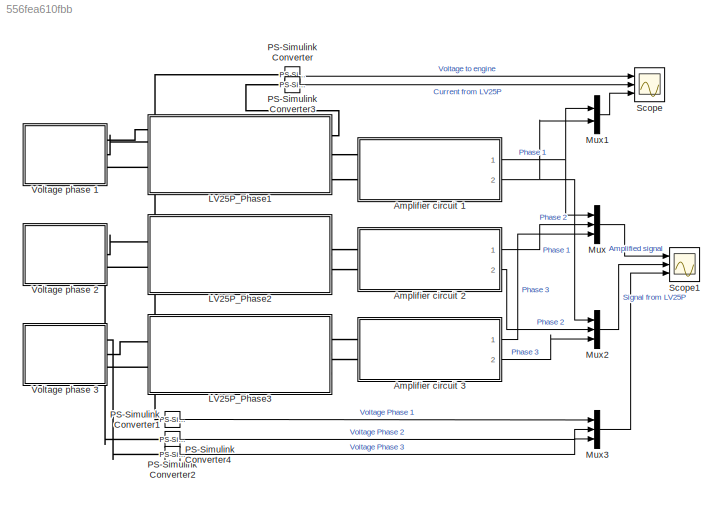
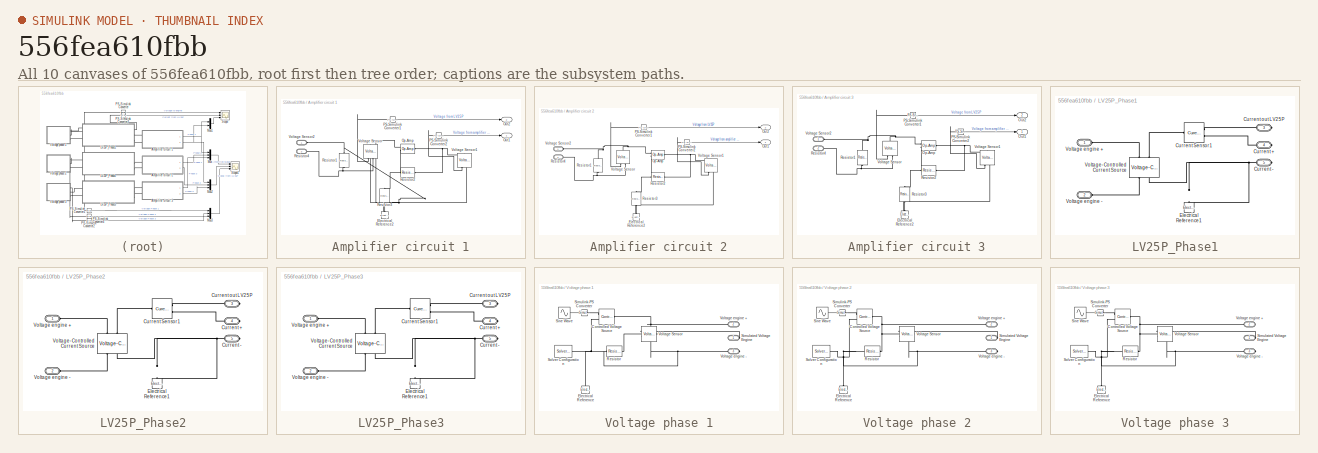
[diagram: thumbnail index - all 10 canvases of the model, root first then tree order]
MODEL slx_556fea610fbb
KIND model
CONFIG AbsTol = auto
CONFIG EnableMultiTasking = off
CONFIG FixedStep = auto
CONFIG MaxStep = auto
CONFIG MinStep = auto
CONFIG RelTol = 1e-3
CONFIG SampleTimeConstraint = Unconstrained
CONFIG SolverName = VariableStepAuto
CONFIG StartTime = 0.0
CONFIG StopTime = 1/15
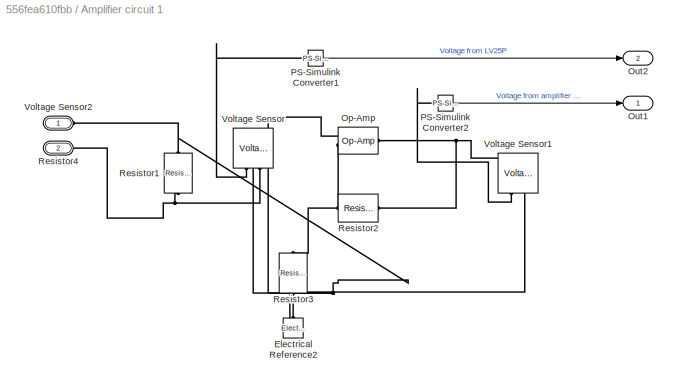
BLOCK [SubSystem] Amplifier circuit 1
  Ports = [0, 2, 0, 0, 0, 2]
  RequestExecContextInheritance = off
BLOCK [Reference] Amplifier circuit 1/Electrical Reference2  REF=fl_lib/Electrical/Electrical Elements/Electrical Reference
  NameLocation = right
  Ports = [0, 0, 0, 0, 0, 1]
  SourceBlock = fl_lib/Electrical/Electrical Elements/Electrical Reference
  SourceProductBaseCode = SS
  SourceType = Electrical Reference
BLOCK [Reference] Amplifier circuit 1/Op-Amp  REF=fl_lib/Electrical/Electrical Elements/Op-Amp
  Ports = [0, 0, 0, 0, 0, 2, 1]
  SourceBlock = fl_lib/Electrical/Electrical Elements/Op-Amp
  SourceProductBaseCode = SS
  SourceType = Op-Amp
BLOCK [Outport] Amplifier circuit 1/Out1
BLOCK [Outport] Amplifier circuit 1/Out2
  Port = 2
BLOCK [Reference] Amplifier circuit 1/PS-Simulink Converter1  REF=nesl_utility/PS-Simulink
Converter
  Ports = [0, 1, 0, 0, 0, 1]
  SourceBlock = nesl_utility/PS-Simulink\nConverter
  SourceProductBaseCode = SS
  SourceType = PS-Simulink\nConverter
BLOCK [Reference] Amplifier circuit 1/PS-Simulink Converter2  REF=nesl_utility/PS-Simulink
Converter
  Ports = [0, 1, 0, 0, 0, 1]
  SourceBlock = nesl_utility/PS-Simulink\nConverter
  SourceProductBaseCode = SS
  SourceType = PS-Simulink\nConverter
BLOCK [Reference] Amplifier circuit 1/Resistor1  REF=fl_lib/Electrical/Electrical Elements/Resistor
  NameLocation = left
  Ports = [0, 0, 0, 0, 0, 1, 1]
  SourceBlock = fl_lib/Electrical/Electrical Elements/Resistor
  SourceProductBaseCode = SS
  SourceType = Resistor
BLOCK [Reference] Amplifier circuit 1/Resistor2  REF=fl_lib/Electrical/Electrical Elements/Resistor
  Ports = [0, 0, 0, 0, 0, 1, 1]
  SourceBlock = fl_lib/Electrical/Electrical Elements/Resistor
  SourceProductBaseCode = SS
  SourceType = Resistor
BLOCK [Reference] Amplifier circuit 1/Resistor3  REF=fl_lib/Electrical/Electrical Elements/Resistor
  NameLocation = left
  Ports = [0, 0, 0, 0, 0, 1, 1]
  SourceBlock = fl_lib/Electrical/Electrical Elements/Resistor
  SourceProductBaseCode = SS
  SourceType = Resistor
BLOCK [PMIOPort] Amplifier circuit 1/Resistor4
  Port = 2
  Side = Left
BLOCK [Reference] Amplifier circuit 1/Voltage Sensor  REF=fl_lib/Electrical/Electrical Sensors/Voltage Sensor
  NameLocation = right
  Ports = [0, 0, 0, 0, 0, 1, 2]
  SourceBlock = fl_lib/Electrical/Electrical Sensors/Voltage Sensor
  SourceProductBaseCode = SS
  SourceType = Voltage Sensor
BLOCK [Reference] Amplifier circuit 1/Voltage Sensor1  REF=fl_lib/Electrical/Electrical Sensors/Voltage Sensor
  NameLocation = right
  Ports = [0, 0, 0, 0, 0, 1, 2]
  SourceBlock = fl_lib/Electrical/Electrical Sensors/Voltage Sensor
  SourceProductBaseCode = SS
  SourceType = Voltage Sensor
BLOCK [PMIOPort] Amplifier circuit 1/Voltage Sensor2
  Side = Left
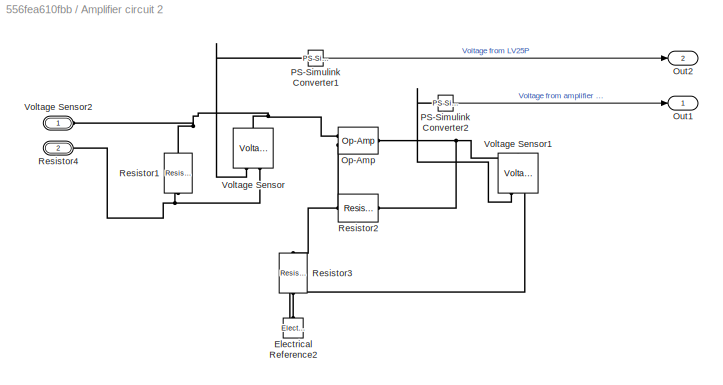
BLOCK [SubSystem] Amplifier circuit 2
  Ports = [0, 2, 0, 0, 0, 2]
  RequestExecContextInheritance = off
BLOCK [Reference] Amplifier circuit 2/Electrical Reference2  REF=fl_lib/Electrical/Electrical Elements/Electrical Reference
  NameLocation = right
  Ports = [0, 0, 0, 0, 0, 1]
  SourceBlock = fl_lib/Electrical/Electrical Elements/Electrical Reference
  SourceProductBaseCode = SS
  SourceType = Electrical Reference
BLOCK [Reference] Amplifier circuit 2/Op-Amp  REF=fl_lib/Electrical/Electrical Elements/Op-Amp
  Ports = [0, 0, 0, 0, 0, 2, 1]
  SourceBlock = fl_lib/Electrical/Electrical Elements/Op-Amp
  SourceProductBaseCode = SS
  SourceType = Op-Amp
BLOCK [Outport] Amplifier circuit 2/Out1
BLOCK [Outport] Amplifier circuit 2/Out2
  Port = 2
BLOCK [Reference] Amplifier circuit 2/PS-Simulink Converter1  REF=nesl_utility/PS-Simulink
Converter
  Ports = [0, 1, 0, 0, 0, 1]
  SourceBlock = nesl_utility/PS-Simulink\nConverter
  SourceProductBaseCode = SS
  SourceType = PS-Simulink\nConverter
BLOCK [Reference] Amplifier circuit 2/PS-Simulink Converter2  REF=nesl_utility/PS-Simulink
Converter
  Ports = [0, 1, 0, 0, 0, 1]
  SourceBlock = nesl_utility/PS-Simulink\nConverter
  SourceProductBaseCode = SS
  SourceType = PS-Simulink\nConverter
BLOCK [Reference] Amplifier circuit 2/Resistor1  REF=fl_lib/Electrical/Electrical Elements/Resistor
  NameLocation = left
  Ports = [0, 0, 0, 0, 0, 1, 1]
  SourceBlock = fl_lib/Electrical/Electrical Elements/Resistor
  SourceProductBaseCode = SS
  SourceType = Resistor
BLOCK [Reference] Amplifier circuit 2/Resistor2  REF=fl_lib/Electrical/Electrical Elements/Resistor
  Ports = [0, 0, 0, 0, 0, 1, 1]
  SourceBlock = fl_lib/Electrical/Electrical Elements/Resistor
  SourceProductBaseCode = SS
  SourceType = Resistor
BLOCK [Reference] Amplifier circuit 2/Resistor3  REF=fl_lib/Electrical/Electrical Elements/Resistor
  NameLocation = left
  Ports = [0, 0, 0, 0, 0, 1, 1]
  SourceBlock = fl_lib/Electrical/Electrical Elements/Resistor
  SourceProductBaseCode = SS
  SourceType = Resistor
BLOCK [PMIOPort] Amplifier circuit 2/Resistor4
  Port = 2
  Side = Left
BLOCK [Reference] Amplifier circuit 2/Voltage Sensor  REF=fl_lib/Electrical/Electrical Sensors/Voltage Sensor
  NameLocation = right
  Ports = [0, 0, 0, 0, 0, 1, 2]
  SourceBlock = fl_lib/Electrical/Electrical Sensors/Voltage Sensor
  SourceProductBaseCode = SS
  SourceType = Voltage Sensor
BLOCK [Reference] Amplifier circuit 2/Voltage Sensor1  REF=fl_lib/Electrical/Electrical Sensors/Voltage Sensor
  NameLocation = right
  Ports = [0, 0, 0, 0, 0, 1, 2]
  SourceBlock = fl_lib/Electrical/Electrical Sensors/Voltage Sensor
  SourceProductBaseCode = SS
  SourceType = Voltage Sensor
BLOCK [PMIOPort] Amplifier circuit 2/Voltage Sensor2
  Side = Left
BLOCK [SubSystem] Amplifier circuit 3
  Ports = [0, 2, 0, 0, 0, 2]
  RequestExecContextInheritance = off
BLOCK [Reference] Amplifier circuit 3/Electrical Reference2  REF=fl_lib/Electrical/Electrical Elements/Electrical Reference
  NameLocation = right
  Ports = [0, 0, 0, 0, 0, 1]
  SourceBlock = fl_lib/Electrical/Electrical Elements/Electrical Reference
  SourceProductBaseCode = SS
  SourceType = Electrical Reference
BLOCK [Reference] Amplifier circuit 3/Op-Amp  REF=fl_lib/Electrical/Electrical Elements/Op-Amp
  Ports = [0, 0, 0, 0, 0, 2, 1]
  SourceBlock = fl_lib/Electrical/Electrical Elements/Op-Amp
  SourceProductBaseCode = SS
  SourceType = Op-Amp
BLOCK [Outport] Amplifier circuit 3/Out1
BLOCK [Outport] Amplifier circuit 3/Out2
  Port = 2
BLOCK [Reference] Amplifier circuit 3/PS-Simulink Converter1  REF=nesl_utility/PS-Simulink
Converter
  Ports = [0, 1, 0, 0, 0, 1]
  SourceBlock = nesl_utility/PS-Simulink\nConverter
  SourceProductBaseCode = SS
  SourceType = PS-Simulink\nConverter
BLOCK [Reference] Amplifier circuit 3/PS-Simulink Converter2  REF=nesl_utility/PS-Simulink
Converter
  Ports = [0, 1, 0, 0, 0, 1]
  SourceBlock = nesl_utility/PS-Simulink\nConverter
  SourceProductBaseCode = SS
  SourceType = PS-Simulink\nConverter
BLOCK [Reference] Amplifier circuit 3/Resistor1  REF=fl_lib/Electrical/Electrical Elements/Resistor
  NameLocation = left
  Ports = [0, 0, 0, 0, 0, 1, 1]
  SourceBlock = fl_lib/Electrical/Electrical Elements/Resistor
  SourceProductBaseCode = SS
  SourceType = Resistor
BLOCK [Reference] Amplifier circuit 3/Resistor2  REF=fl_lib/Electrical/Electrical Elements/Resistor
  Ports = [0, 0, 0, 0, 0, 1, 1]
  SourceBlock = fl_lib/Electrical/Electrical Elements/Resistor
  SourceProductBaseCode = SS
  SourceType = Resistor
BLOCK [Reference] Amplifier circuit 3/Resistor3  REF=fl_lib/Electrical/Electrical Elements/Resistor
  NameLocation = left
  Ports = [0, 0, 0, 0, 0, 1, 1]
  SourceBlock = fl_lib/Electrical/Electrical Elements/Resistor
  SourceProductBaseCode = SS
  SourceType = Resistor
BLOCK [PMIOPort] Amplifier circuit 3/Resistor4
  Port = 2
  Side = Left
BLOCK [Reference] Amplifier circuit 3/Voltage Sensor  REF=fl_lib/Electrical/Electrical Sensors/Voltage Sensor
  NameLocation = right
  Ports = [0, 0, 0, 0, 0, 1, 2]
  SourceBlock = fl_lib/Electrical/Electrical Sensors/Voltage Sensor
  SourceProductBaseCode = SS
  SourceType = Voltage Sensor
BLOCK [Reference] Amplifier circuit 3/Voltage Sensor1  REF=fl_lib/Electrical/Electrical Sensors/Voltage Sensor
  NameLocation = right
  Ports = [0, 0, 0, 0, 0, 1, 2]
  SourceBlock = fl_lib/Electrical/Electrical Sensors/Voltage Sensor
  SourceProductBaseCode = SS
  SourceType = Voltage Sensor
BLOCK [PMIOPort] Amplifier circuit 3/Voltage Sensor2
  Side = Left
BLOCK [SubSystem] LV25P_Phase1
  Ports = [0, 0, 0, 0, 0, 2, 3]
  RequestExecContextInheritance = off
BLOCK [PMIOPort] LV25P_Phase1/Current +
  Port = 4
  Side = Right
BLOCK [PMIOPort] LV25P_Phase1/Current -
  Port = 5
  Side = Right
BLOCK [Reference] LV25P_Phase1/Current Sensor1  REF=fl_lib/Electrical/Electrical Sensors/Current Sensor
  Ports = [0, 0, 0, 0, 0, 1, 2]
  SourceBlock = fl_lib/Electrical/Electrical Sensors/Current Sensor
  SourceProductBaseCode = SS
  SourceType = Current Sensor
BLOCK [PMIOPort] LV25P_Phase1/Current out LV25P
  Port = 3
  Side = Right
BLOCK [Reference] LV25P_Phase1/Electrical Reference1  REF=fl_lib/Electrical/Electrical Elements/Electrical Reference
  NameLocation = right
  Ports = [0, 0, 0, 0, 0, 1]
  SourceBlock = fl_lib/Electrical/Electrical Elements/Electrical Reference
  SourceProductBaseCode = SS
  SourceType = Electrical Reference
BLOCK [PMIOPort] LV25P_Phase1/Voltage engine +
  Side = Left
BLOCK [PMIOPort] LV25P_Phase1/Voltage engine -
  Port = 2
  Side = Left
BLOCK [Reference] LV25P_Phase1/Voltage-Controlled Current Source  REF=fl_lib/Electrical/Electrical Sources/Voltage-Controlled
Current Source
  NameLocation = right
  Ports = [0, 0, 0, 0, 0, 2, 2]
  SourceBlock = fl_lib/Electrical/Electrical Sources/Voltage-Controlled\nCurrent Source
  SourceProductBaseCode = SS
  SourceType = Voltage-Controlled\nCurrent Source
BLOCK [SubSystem] LV25P_Phase2
  Ports = [0, 0, 0, 0, 0, 2, 3]
  RequestExecContextInheritance = off
BLOCK [PMIOPort] LV25P_Phase2/Current +
  Port = 4
  Side = Right
BLOCK [PMIOPort] LV25P_Phase2/Current -
  Port = 5
  Side = Right
BLOCK [Reference] LV25P_Phase2/Current Sensor1  REF=fl_lib/Electrical/Electrical Sensors/Current Sensor
  Ports = [0, 0, 0, 0, 0, 1, 2]
  SourceBlock = fl_lib/Electrical/Electrical Sensors/Current Sensor
  SourceProductBaseCode = SS
  SourceType = Current Sensor
BLOCK [PMIOPort] LV25P_Phase2/Current out LV25P
  Port = 3
  Side = Right
BLOCK [Reference] LV25P_Phase2/Electrical Reference1  REF=fl_lib/Electrical/Electrical Elements/Electrical Reference
  NameLocation = right
  Ports = [0, 0, 0, 0, 0, 1]
  SourceBlock = fl_lib/Electrical/Electrical Elements/Electrical Reference
  SourceProductBaseCode = SS
  SourceType = Electrical Reference
BLOCK [PMIOPort] LV25P_Phase2/Voltage engine +
  Side = Left
BLOCK [PMIOPort] LV25P_Phase2/Voltage engine -
  Port = 2
  Side = Left
BLOCK [Reference] LV25P_Phase2/Voltage-Controlled Current Source  REF=fl_lib/Electrical/Electrical Sources/Voltage-Controlled
Current Source
  NameLocation = right
  Ports = [0, 0, 0, 0, 0, 2, 2]
  SourceBlock = fl_lib/Electrical/Electrical Sources/Voltage-Controlled\nCurrent Source
  SourceProductBaseCode = SS
  SourceType = Voltage-Controlled\nCurrent Source
BLOCK [SubSystem] LV25P_Phase3
  Ports = [0, 0, 0, 0, 0, 2, 3]
  RequestExecContextInheritance = off
BLOCK [PMIOPort] LV25P_Phase3/Current +
  Port = 4
  Side = Right
BLOCK [PMIOPort] LV25P_Phase3/Current -
  Port = 5
  Side = Right
BLOCK [Reference] LV25P_Phase3/Current Sensor1  REF=fl_lib/Electrical/Electrical Sensors/Current Sensor
  Ports = [0, 0, 0, 0, 0, 1, 2]
  SourceBlock = fl_lib/Electrical/Electrical Sensors/Current Sensor
  SourceProductBaseCode = SS
  SourceType = Current Sensor
BLOCK [PMIOPort] LV25P_Phase3/Current out LV25P
  Port = 3
  Side = Right
BLOCK [Reference] LV25P_Phase3/Electrical Reference1  REF=fl_lib/Electrical/Electrical Elements/Electrical Reference
  NameLocation = right
  Ports = [0, 0, 0, 0, 0, 1]
  SourceBlock = fl_lib/Electrical/Electrical Elements/Electrical Reference
  SourceProductBaseCode = SS
  SourceType = Electrical Reference
BLOCK [PMIOPort] LV25P_Phase3/Voltage engine +
  Side = Left
BLOCK [PMIOPort] LV25P_Phase3/Voltage engine -
  Port = 2
  Side = Left
BLOCK [Reference] LV25P_Phase3/Voltage-Controlled Current Source  REF=fl_lib/Electrical/Electrical Sources/Voltage-Controlled
Current Source
  NameLocation = right
  Ports = [0, 0, 0, 0, 0, 2, 2]
  SourceBlock = fl_lib/Electrical/Electrical Sources/Voltage-Controlled\nCurrent Source
  SourceProductBaseCode = SS
  SourceType = Voltage-Controlled\nCurrent Source
BLOCK [Mux] Mux
  DisplayOption = bar
  Inputs = 3
  Ports = [3, 1]
BLOCK [Mux] Mux1
  DisplayOption = bar
  Inputs = 2
  Ports = [2, 1]
BLOCK [Mux] Mux2
  DisplayOption = bar
  Inputs = 3
  Ports = [3, 1]
BLOCK [Mux] Mux3
  DisplayOption = bar
  Inputs = 3
  Ports = [3, 1]
BLOCK [Reference] PS-Simulink Converter  REF=nesl_utility/PS-Simulink
Converter
  Ports = [0, 1, 0, 0, 0, 1]
  SourceBlock = nesl_utility/PS-Simulink\nConverter
  SourceProductBaseCode = SS
  SourceType = PS-Simulink\nConverter
BLOCK [Reference] PS-Simulink Converter1  REF=nesl_utility/PS-Simulink
Converter
  Ports = [0, 1, 0, 0, 0, 1]
  SourceBlock = nesl_utility/PS-Simulink\nConverter
  SourceProductBaseCode = SS
  SourceType = PS-Simulink\nConverter
BLOCK [Reference] PS-Simulink Converter2  REF=nesl_utility/PS-Simulink
Converter
  Ports = [0, 1, 0, 0, 0, 1]
  SourceBlock = nesl_utility/PS-Simulink\nConverter
  SourceProductBaseCode = SS
  SourceType = PS-Simulink\nConverter
BLOCK [Reference] PS-Simulink Converter3  REF=nesl_utility/PS-Simulink
Converter
  Ports = [0, 1, 0, 0, 0, 1]
  SourceBlock = nesl_utility/PS-Simulink\nConverter
  SourceProductBaseCode = SS
  SourceType = PS-Simulink\nConverter
BLOCK [Reference] PS-Simulink Converter4  REF=nesl_utility/PS-Simulink
Converter
  Ports = [0, 1, 0, 0, 0, 1]
  SourceBlock = nesl_utility/PS-Simulink\nConverter
  SourceProductBaseCode = SS
  SourceType = PS-Simulink\nConverter
BLOCK [Scope] Scope
  Floating = off
  NumInputPorts = 3
  Ports = [3]
  ScopeSpecificationString = Simulink.scopes.TimeScopeBlockCfg('CurrentConfiguration', extmgr.ConfigurationSet(extmgr.Configuration('Core','General UI',true),extmgr.Configuration('Core','Source UI',true),extmgr.Configuration('Sources','WiredSimulink',true),extmgr.Configuration('Visuals','Time Domain',true,'SerializedDisplays',{struct('MinYLimReal','-249.55366','MaxYLimReal','249.85565','YLabelReal','','MinYLimMag',' 0.00000',...<+2816ch>
BLOCK [Scope] Scope1
  Floating = off
  NumInputPorts = 3
  Ports = [3]
  ScopeSpecificationString = Simulink.scopes.TimeScopeBlockCfg('CurrentConfiguration', extmgr.ConfigurationSet(extmgr.Configuration('Core','General UI',true),extmgr.Configuration('Core','Source UI',true),extmgr.Configuration('Sources','WiredSimulink',true,'DataLoggingVariableName','ScopeData1'),extmgr.Configuration('Visuals','Time Domain',true,'SerializedDisplays',{struct('MinYLimReal','-12.49893','MaxYLimReal','12.49514','YL...<+3252ch>
BLOCK [SubSystem] Voltage phase 1
  Ports = [0, 0, 0, 0, 0, 0, 3]
  RequestExecContextInheritance = off
BLOCK [Reference] Voltage phase 1/Controlled Voltage Source  REF=fl_lib/Electrical/Electrical Sources/Controlled Voltage
Source
  Ports = [0, 0, 0, 0, 0, 1, 2]
  SourceBlock = fl_lib/Electrical/Electrical Sources/Controlled Voltage\nSource
  SourceProductBaseCode = SS
  SourceType = Controlled Voltage\nSource
BLOCK [Reference] Voltage phase 1/Electrical Reference  REF=fl_lib/Electrical/Electrical Elements/Electrical Reference
  NameLocation = right
  Ports = [0, 0, 0, 0, 0, 1]
  SourceBlock = fl_lib/Electrical/Electrical Elements/Electrical Reference
  SourceProductBaseCode = SS
  SourceType = Electrical Reference
BLOCK [Reference] Voltage phase 1/Resistor  REF=fl_lib/Electrical/Electrical Elements/Resistor
  Ports = [0, 0, 0, 0, 0, 1, 1]
  SourceBlock = fl_lib/Electrical/Electrical Elements/Resistor
  SourceProductBaseCode = SS
  SourceType = Resistor
BLOCK [PMIOPort] Voltage phase 1/Simulated Voltage Engine
  Side = Right
BLOCK [Reference] Voltage phase 1/Simulink-PS Converter  REF=nesl_utility/Simulink-PS
Converter
  Ports = [1, 0, 0, 0, 0, 0, 1]
  SourceBlock = nesl_utility/Simulink-PS\nConverter
  SourceProductBaseCode = SS
  SourceType = Simulink-PS\nConverter
BLOCK [Sin] Voltage phase 1/Sine Wave
  Amplitude = 200
  Frequency = 200
  Ports = [0, 1]
  SampleTime = 0
BLOCK [Reference] Voltage phase 1/Solver Configuration  REF=nesl_utility/Solver
Configuration
  Ports = [0, 0, 0, 0, 0, 0, 1]
  SourceBlock = nesl_utility/Solver\nConfiguration
  SourceProductBaseCode = SS
  SourceType = Solver\nConfiguration
BLOCK [Reference] Voltage phase 1/Voltage Sensor  REF=fl_lib/Electrical/Electrical Sensors/Voltage Sensor
  NameLocation = top
  Ports = [0, 0, 0, 0, 0, 1, 2]
  SourceBlock = fl_lib/Electrical/Electrical Sensors/Voltage Sensor
  SourceProductBaseCode = SS
  SourceType = Voltage Sensor
BLOCK [PMIOPort] Voltage phase 1/Voltage engine +
  Port = 2
  Side = Right
BLOCK [PMIOPort] Voltage phase 1/Voltage engine -
  Port = 3
  Side = Right
BLOCK [SubSystem] Voltage phase 2
  Ports = [0, 0, 0, 0, 0, 0, 3]
  RequestExecContextInheritance = off
BLOCK [Reference] Voltage phase 2/Controlled Voltage Source  REF=fl_lib/Electrical/Electrical Sources/Controlled Voltage
Source
  Ports = [0, 0, 0, 0, 0, 1, 2]
  SourceBlock = fl_lib/Electrical/Electrical Sources/Controlled Voltage\nSource
  SourceProductBaseCode = SS
  SourceType = Controlled Voltage\nSource
BLOCK [Reference] Voltage phase 2/Electrical Reference  REF=fl_lib/Electrical/Electrical Elements/Electrical Reference
  NameLocation = right
  Ports = [0, 0, 0, 0, 0, 1]
  SourceBlock = fl_lib/Electrical/Electrical Elements/Electrical Reference
  SourceProductBaseCode = SS
  SourceType = Electrical Reference
BLOCK [Reference] Voltage phase 2/Resistor  REF=fl_lib/Electrical/Electrical Elements/Resistor
  Ports = [0, 0, 0, 0, 0, 1, 1]
  SourceBlock = fl_lib/Electrical/Electrical Elements/Resistor
  SourceProductBaseCode = SS
  SourceType = Resistor
BLOCK [PMIOPort] Voltage phase 2/Simulated Voltage Engine
  Side = Right
BLOCK [Reference] Voltage phase 2/Simulink-PS Converter  REF=nesl_utility/Simulink-PS
Converter
  Ports = [1, 0, 0, 0, 0, 0, 1]
  SourceBlock = nesl_utility/Simulink-PS\nConverter
  SourceProductBaseCode = SS
  SourceType = Simulink-PS\nConverter
BLOCK [Sin] Voltage phase 2/Sine Wave
  Amplitude = 200
  Frequency = 200
  Phase = 2*pi/3
  Ports = [0, 1]
  SampleTime = 0
BLOCK [Reference] Voltage phase 2/Solver Configuration  REF=nesl_utility/Solver
Configuration
  Ports = [0, 0, 0, 0, 0, 0, 1]
  SourceBlock = nesl_utility/Solver\nConfiguration
  SourceProductBaseCode = SS
  SourceType = Solver\nConfiguration
BLOCK [Reference] Voltage phase 2/Voltage Sensor  REF=fl_lib/Electrical/Electrical Sensors/Voltage Sensor
  NameLocation = top
  Ports = [0, 0, 0, 0, 0, 1, 2]
  SourceBlock = fl_lib/Electrical/Electrical Sensors/Voltage Sensor
  SourceProductBaseCode = SS
  SourceType = Voltage Sensor
BLOCK [PMIOPort] Voltage phase 2/Voltage engine +
  Port = 2
  Side = Right
BLOCK [PMIOPort] Voltage phase 2/Voltage engine -
  Port = 3
  Side = Right
BLOCK [SubSystem] Voltage phase 3
  Ports = [0, 0, 0, 0, 0, 0, 3]
  RequestExecContextInheritance = off
BLOCK [Reference] Voltage phase 3/Controlled Voltage Source  REF=fl_lib/Electrical/Electrical Sources/Controlled Voltage
Source
  Ports = [0, 0, 0, 0, 0, 1, 2]
  SourceBlock = fl_lib/Electrical/Electrical Sources/Controlled Voltage\nSource
  SourceProductBaseCode = SS
  SourceType = Controlled Voltage\nSource
BLOCK [Reference] Voltage phase 3/Electrical Reference  REF=fl_lib/Electrical/Electrical Elements/Electrical Reference
  NameLocation = right
  Ports = [0, 0, 0, 0, 0, 1]
  SourceBlock = fl_lib/Electrical/Electrical Elements/Electrical Reference
  SourceProductBaseCode = SS
  SourceType = Electrical Reference
BLOCK [Reference] Voltage phase 3/Resistor  REF=fl_lib/Electrical/Electrical Elements/Resistor
  Ports = [0, 0, 0, 0, 0, 1, 1]
  SourceBlock = fl_lib/Electrical/Electrical Elements/Resistor
  SourceProductBaseCode = SS
  SourceType = Resistor
BLOCK [PMIOPort] Voltage phase 3/Simulated Voltage Engine
  Side = Right
BLOCK [Reference] Voltage phase 3/Simulink-PS Converter  REF=nesl_utility/Simulink-PS
Converter
  Ports = [1, 0, 0, 0, 0, 0, 1]
  SourceBlock = nesl_utility/Simulink-PS\nConverter
  SourceProductBaseCode = SS
  SourceType = Simulink-PS\nConverter
BLOCK [Sin] Voltage phase 3/Sine Wave
  Amplitude = 200
  Frequency = 200
  Phase = 4*pi/3
  Ports = [0, 1]
  SampleTime = 0
BLOCK [Reference] Voltage phase 3/Solver Configuration  REF=nesl_utility/Solver
Configuration
  Ports = [0, 0, 0, 0, 0, 0, 1]
  SourceBlock = nesl_utility/Solver\nConfiguration
  SourceProductBaseCode = SS
  SourceType = Solver\nConfiguration
BLOCK [Reference] Voltage phase 3/Voltage Sensor  REF=fl_lib/Electrical/Electrical Sensors/Voltage Sensor
  NameLocation = top
  Ports = [0, 0, 0, 0, 0, 1, 2]
  SourceBlock = fl_lib/Electrical/Electrical Sensors/Voltage Sensor
  SourceProductBaseCode = SS
  SourceType = Voltage Sensor
BLOCK [PMIOPort] Voltage phase 3/Voltage engine +
  Port = 2
  Side = Right
BLOCK [PMIOPort] Voltage phase 3/Voltage engine -
  Port = 3
  Side = Right
LINE Amplifier circuit 1/PS-Simulink Converter1:1 -> Amplifier circuit 1/Out2:1
LINE Amplifier circuit 1/PS-Simulink Converter2:1 -> Amplifier circuit 1/Out1:1
NET Amplifier circuit 1:1 -> Mux1:1, Mux:1
NET Amplifier circuit 1:2 -> Mux1:2, Mux2:1
LINE Amplifier circuit 2/PS-Simulink Converter1:1 -> Amplifier circuit 2/Out2:1
LINE Amplifier circuit 2/PS-Simulink Converter2:1 -> Amplifier circuit 2/Out1:1
LINE Amplifier circuit 2:1 -> Mux:2
LINE Amplifier circuit 2:2 -> Mux2:2
LINE Amplifier circuit 3/PS-Simulink Converter1:1 -> Amplifier circuit 3/Out2:1
LINE Amplifier circuit 3/PS-Simulink Converter2:1 -> Amplifier circuit 3/Out1:1
LINE Amplifier circuit 3:1 -> Mux:3
LINE Amplifier circuit 3:2 -> Mux2:3
LINE Mux1:1 -> Scope:3
LINE Mux2:1 -> Scope1:2
LINE Mux3:1 -> Scope1:3
LINE Mux:1 -> Scope1:1
LINE PS-Simulink Converter1:1 -> Mux3:1
LINE PS-Simulink Converter2:1 -> Mux3:2
LINE PS-Simulink Converter3:1 -> Scope:2
LINE PS-Simulink Converter4:1 -> Mux3:3
LINE PS-Simulink Converter:1 -> Scope:1
LINE Voltage phase 1/Sine Wave:1 -> Voltage phase 1/Simulink-PS Converter:1
LINE Voltage phase 2/Sine Wave:1 -> Voltage phase 2/Simulink-PS Converter:1
LINE Voltage phase 3/Sine Wave:1 -> Voltage phase 3/Simulink-PS Converter:1
PNET net1: Amplifier circuit 1/Electrical Reference2:LConn1 -- Amplifier circuit 1/Resistor3:RConn1 -- Amplifier circuit 1/Voltage Sensor1:RConn2
PNET net2: Amplifier circuit 1/Op-Amp:LConn1 -- Amplifier circuit 1/Resistor1:LConn1 -- Amplifier circuit 1/Voltage Sensor2:RConn1 -- Amplifier circuit 1/Voltage Sensor:LConn1
PNET net3: Amplifier circuit 1/Op-Amp:LConn2 -- Amplifier circuit 1/Resistor2:LConn1 -- Amplifier circuit 1/Resistor3:LConn1
PNET net4: Amplifier circuit 1/Op-Amp:RConn1 -- Amplifier circuit 1/Resistor2:RConn1 -- Amplifier circuit 1/Voltage Sensor1:LConn1
PLINE Amplifier circuit 1/PS-Simulink Converter1:LConn1 -- Amplifier circuit 1/Voltage Sensor:RConn1
PLINE Amplifier circuit 1/PS-Simulink Converter2:LConn1 -- Amplifier circuit 1/Voltage Sensor1:RConn1
PNET net5: Amplifier circuit 1/Resistor1:RConn1 -- Amplifier circuit 1/Resistor4:RConn1 -- Amplifier circuit 1/Voltage Sensor:RConn2
PLINE Amplifier circuit 1:LConn1 -- LV25P_Phase1:RConn2
PLINE Amplifier circuit 1:LConn2 -- LV25P_Phase1:RConn3
PNET net6: Amplifier circuit 2/Electrical Reference2:LConn1 -- Amplifier circuit 2/Resistor3:RConn1 -- Amplifier circuit 2/Voltage Sensor1:RConn2
PNET net7: Amplifier circuit 2/Op-Amp:LConn1 -- Amplifier circuit 2/Resistor1:LConn1 -- Amplifier circuit 2/Voltage Sensor2:RConn1 -- Amplifier circuit 2/Voltage Sensor:LConn1
PNET net8: Amplifier circuit 2/Op-Amp:LConn2 -- Amplifier circuit 2/Resistor2:LConn1 -- Amplifier circuit 2/Resistor3:LConn1
PNET net9: Amplifier circuit 2/Op-Amp:RConn1 -- Amplifier circuit 2/Resistor2:RConn1 -- Amplifier circuit 2/Voltage Sensor1:LConn1
PLINE Amplifier circuit 2/PS-Simulink Converter1:LConn1 -- Amplifier circuit 2/Voltage Sensor:RConn1
PLINE Amplifier circuit 2/PS-Simulink Converter2:LConn1 -- Amplifier circuit 2/Voltage Sensor1:RConn1
PNET net10: Amplifier circuit 2/Resistor1:RConn1 -- Amplifier circuit 2/Resistor4:RConn1 -- Amplifier circuit 2/Voltage Sensor:RConn2
PLINE Amplifier circuit 2:LConn1 -- LV25P_Phase2:RConn2
PLINE Amplifier circuit 2:LConn2 -- LV25P_Phase2:RConn3
PNET net11: Amplifier circuit 3/Electrical Reference2:LConn1 -- Amplifier circuit 3/Resistor3:RConn1 -- Amplifier circuit 3/Voltage Sensor1:RConn2
PNET net12: Amplifier circuit 3/Op-Amp:LConn1 -- Amplifier circuit 3/Resistor1:LConn1 -- Amplifier circuit 3/Voltage Sensor2:RConn1 -- Amplifier circuit 3/Voltage Sensor:LConn1
PNET net13: Amplifier circuit 3/Op-Amp:LConn2 -- Amplifier circuit 3/Resistor2:LConn1 -- Amplifier circuit 3/Resistor3:LConn1
PNET net14: Amplifier circuit 3/Op-Amp:RConn1 -- Amplifier circuit 3/Resistor2:RConn1 -- Amplifier circuit 3/Voltage Sensor1:LConn1
PLINE Amplifier circuit 3/PS-Simulink Converter1:LConn1 -- Amplifier circuit 3/Voltage Sensor:RConn1
PLINE Amplifier circuit 3/PS-Simulink Converter2:LConn1 -- Amplifier circuit 3/Voltage Sensor1:RConn1
PNET net15: Amplifier circuit 3/Resistor1:RConn1 -- Amplifier circuit 3/Resistor4:RConn1 -- Amplifier circuit 3/Voltage Sensor:RConn2
PLINE Amplifier circuit 3:LConn1 -- LV25P_Phase3:RConn2
PLINE Amplifier circuit 3:LConn2 -- LV25P_Phase3:RConn3
PLINE LV25P_Phase1/Current +:RConn1 -- LV25P_Phase1/Current Sensor1:RConn2
PNET net16: LV25P_Phase1/Current -:RConn1 -- LV25P_Phase1/Electrical Reference1:LConn1 -- LV25P_Phase1/Voltage-Controlled Current Source:RConn2
PLINE LV25P_Phase1/Current Sensor1:LConn1 -- LV25P_Phase1/Voltage-Controlled Current Source:LConn2
PLINE LV25P_Phase1/Current Sensor1:RConn1 -- LV25P_Phase1/Current out LV25P:RConn1
PLINE LV25P_Phase1/Voltage engine +:RConn1 -- LV25P_Phase1/Voltage-Controlled Current Source:LConn1
PLINE LV25P_Phase1/Voltage engine -:RConn1 -- LV25P_Phase1/Voltage-Controlled Current Source:RConn1
PLINE LV25P_Phase1:LConn1 -- Voltage phase 1:RConn2
PLINE LV25P_Phase1:LConn2 -- Voltage phase 1:RConn3
PLINE LV25P_Phase1:RConn1 -- PS-Simulink Converter3:LConn1
PLINE LV25P_Phase2/Current +:RConn1 -- LV25P_Phase2/Current Sensor1:RConn2
PNET net17: LV25P_Phase2/Current -:RConn1 -- LV25P_Phase2/Electrical Reference1:LConn1 -- LV25P_Phase2/Voltage-Controlled Current Source:RConn2
PLINE LV25P_Phase2/Current Sensor1:LConn1 -- LV25P_Phase2/Voltage-Controlled Current Source:LConn2
PLINE LV25P_Phase2/Current Sensor1:RConn1 -- LV25P_Phase2/Current out LV25P:RConn1
PLINE LV25P_Phase2/Voltage engine +:RConn1 -- LV25P_Phase2/Voltage-Controlled Current Source:LConn1
PLINE LV25P_Phase2/Voltage engine -:RConn1 -- LV25P_Phase2/Voltage-Controlled Current Source:RConn1
PLINE LV25P_Phase2:LConn1 -- Voltage phase 2:RConn2
PLINE LV25P_Phase2:LConn2 -- Voltage phase 2:RConn3
PLINE LV25P_Phase3/Current +:RConn1 -- LV25P_Phase3/Current Sensor1:RConn2
PNET net18: LV25P_Phase3/Current -:RConn1 -- LV25P_Phase3/Electrical Reference1:LConn1 -- LV25P_Phase3/Voltage-Controlled Current Source:RConn2
PLINE LV25P_Phase3/Current Sensor1:LConn1 -- LV25P_Phase3/Voltage-Controlled Current Source:LConn2
PLINE LV25P_Phase3/Current Sensor1:RConn1 -- LV25P_Phase3/Current out LV25P:RConn1
PLINE LV25P_Phase3/Voltage engine +:RConn1 -- LV25P_Phase3/Voltage-Controlled Current Source:LConn1
PLINE LV25P_Phase3/Voltage engine -:RConn1 -- LV25P_Phase3/Voltage-Controlled Current Source:RConn1
PLINE LV25P_Phase3:LConn1 -- Voltage phase 3:RConn2
PLINE LV25P_Phase3:LConn2 -- Voltage phase 3:RConn3
PNET net19: PS-Simulink Converter1:LConn1 -- PS-Simulink Converter:LConn1 -- Voltage phase 1:RConn1
PLINE PS-Simulink Converter2:LConn1 -- Voltage phase 2:RConn1
PLINE PS-Simulink Converter4:LConn1 -- Voltage phase 3:RConn1
PNET net20: Voltage phase 1/Controlled Voltage Source:LConn1 -- Voltage phase 1/Resistor:RConn1 -- Voltage phase 1/Voltage Sensor:LConn1 -- Voltage phase 1/Voltage engine +:RConn1
PLINE Voltage phase 1/Controlled Voltage Source:RConn1 -- Voltage phase 1/Simulink-PS Converter:RConn1
PNET net21: Voltage phase 1/Controlled Voltage Source:RConn2 -- Voltage phase 1/Electrical Reference:LConn1 -- Voltage phase 1/Resistor:LConn1 -- Voltage phase 1/Solver Configuration:RConn1 -- Voltage phase 1/Voltage Sensor:RConn2 -- Voltage phase 1/Voltage engine -:RConn1
PLINE Voltage phase 1/Simulated Voltage Engine:RConn1 -- Voltage phase 1/Voltage Sensor:RConn1
PNET net22: Voltage phase 2/Controlled Voltage Source:LConn1 -- Voltage phase 2/Resistor:RConn1 -- Voltage phase 2/Voltage Sensor:LConn1 -- Voltage phase 2/Voltage engine +:RConn1
PLINE Voltage phase 2/Controlled Voltage Source:RConn1 -- Voltage phase 2/Simulink-PS Converter:RConn1
PNET net23: Voltage phase 2/Controlled Voltage Source:RConn2 -- Voltage phase 2/Electrical Reference:LConn1 -- Voltage phase 2/Resistor:LConn1 -- Voltage phase 2/Solver Configuration:RConn1 -- Voltage phase 2/Voltage Sensor:RConn2 -- Voltage phase 2/Voltage engine -:RConn1
PLINE Voltage phase 2/Simulated Voltage Engine:RConn1 -- Voltage phase 2/Voltage Sensor:RConn1
PNET net24: Voltage phase 3/Controlled Voltage Source:LConn1 -- Voltage phase 3/Resistor:RConn1 -- Voltage phase 3/Voltage Sensor:LConn1 -- Voltage phase 3/Voltage engine +:RConn1
PLINE Voltage phase 3/Controlled Voltage Source:RConn1 -- Voltage phase 3/Simulink-PS Converter:RConn1
PNET net25: Voltage phase 3/Controlled Voltage Source:RConn2 -- Voltage phase 3/Electrical Reference:LConn1 -- Voltage phase 3/Resistor:LConn1 -- Voltage phase 3/Solver Configuration:RConn1 -- Voltage phase 3/Voltage Sensor:RConn2 -- Voltage phase 3/Voltage engine -:RConn1
PLINE Voltage phase 3/Simulated Voltage Engine:RConn1 -- Voltage phase 3/Voltage Sensor:RConn1
note: NET lines group one-source signal fan-out (src -> all destinations, sorted); 1:1 wires keep LINE; PNET lines group multi-terminal physical nets as a canonical sorted terminal list (undirected conserving connections); 2-terminal nets keep the pairwise PLINE form
